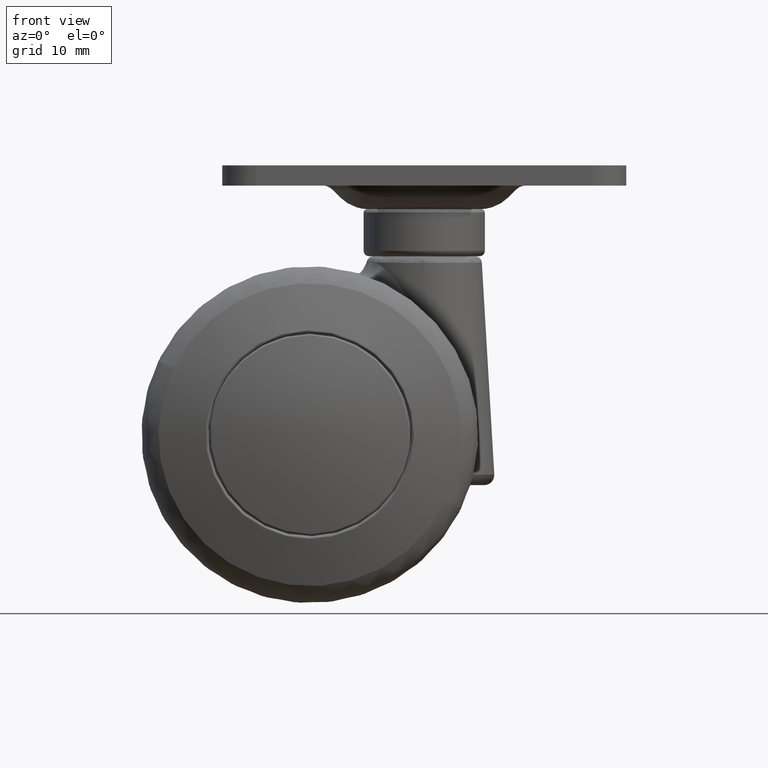
[diagram: clean part render]
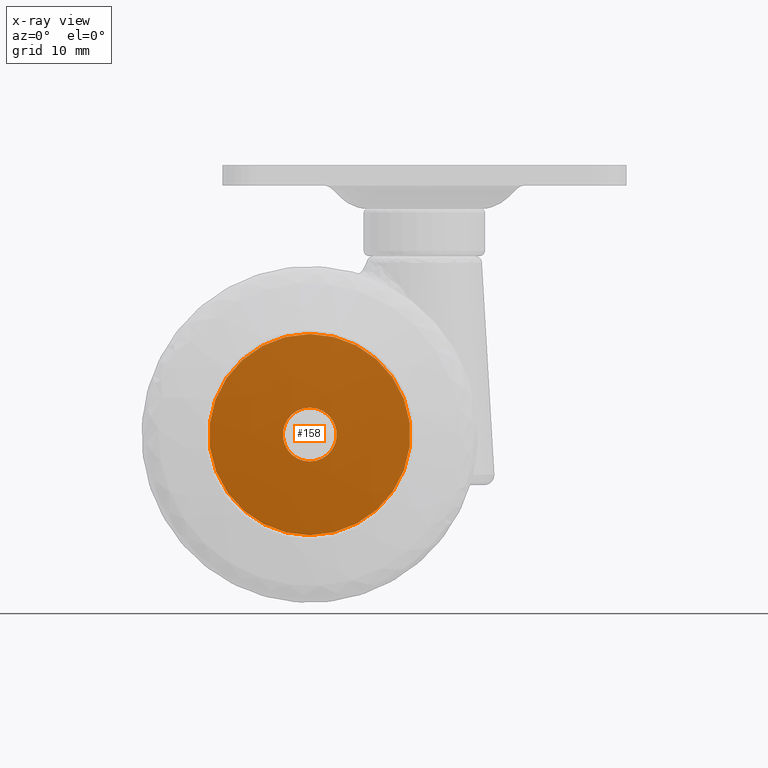
[diagram: x-ray — body ghosted, one internal face saturated and labeled with its STEP entity id]
A machine part, front view, then the same camera in x-ray: the body is ghosted and one INTERNAL B-rep face — a face not visible from any outside direction — is saturated and labeled: STEP entity #158.
In plain terms, the highlighted planar face has unit normal (0, -1, 0).
Its self-contained STEP definition (entity closure, byte-faithful):
#158=ADVANCED_FACE('',(#295,#296),#294,.T.);
#294=PLANE('',#1681);
#295=FACE_OUTER_BOUND('',#1682,.T.);
#296=FACE_BOUND('',#1683,.T.);
#1678=CARTESIAN_POINT('',(-3.42836268246E+01,2.15500000000E+01,2.78420984241E+01));
#1679=DIRECTION('',(0.00000000000E+00,-1.00000000000E+00,0.00000000000E+00));
#1680=DIRECTION('',(0.00000000000E+00,0.00000000000E+00,-1.00000000000E+00));
#1681=AXIS2_PLACEMENT_3D('',#1678,#1679,#1680);
#1682=EDGE_LOOP('',(#6451,#6452,#6453));
#1683=EDGE_LOOP('',(#6454,#6455));
#6451=ORIENTED_EDGE('',*,*,#7069,.T.);
#6452=ORIENTED_EDGE('',*,*,#7070,.T.);
#6453=ORIENTED_EDGE('',*,*,#7071,.T.);
#6454=ORIENTED_EDGE('',*,*,#7072,.F.);
#6455=ORIENTED_EDGE('',*,*,#7073,.F.);
#7069=EDGE_CURVE('',#7378,#7379,#7380,.T.);
#7070=EDGE_CURVE('',#7379,#7386,#7387,.T.);
#7071=EDGE_CURVE('',#7386,#7378,#7393,.T.);
#7072=EDGE_CURVE('',#7399,#7400,#7401,.T.);
#7073=EDGE_CURVE('',#7400,#7399,#7407,.T.);
#7378=VERTEX_POINT('',#9423);
#7379=VERTEX_POINT('',#9424);
#7380=CIRCLE('',#9428,1.49500000000E+01);
#7386=VERTEX_POINT('',#9429);
#7387=CIRCLE('',#9433,1.49500000000E+01);
#7393=CIRCLE('',#9437,1.49500000000E+01);
#7399=VERTEX_POINT('',#9438);
#7400=VERTEX_POINT('',#9439);
#7401=CIRCLE('',#9443,4.00000000000E+00);
#7407=CIRCLE('',#9447,4.00000000000E+00);
#9423=CARTESIAN_POINT('',(-9.70151117690E+00,2.15500000000E+01,-1.13746727814E+01));
#9424=CARTESIAN_POINT('',(2.72137363341E-03,2.15500000000E+01,-1.49499997523E+01));
#9425=CARTESIAN_POINT('',(0.00000000000E+00,2.15500000000E+01,0.00000000000E+00));
#9426=DIRECTION('',(0.00000000000E+00,-1.00000000000E+00,0.00000000000E+00));
#9427=DIRECTION('',(-6.48930513505E-01,-0.00000000000E+00,-7.60847677687E-01));
#9428=AXIS2_PLACEMENT_3D('',#9425,#9426,#9427);
#9429=CARTESIAN_POINT('',(2.64134993242E-11,2.15500000000E+01,1.49500000000E+01));
#9430=CARTESIAN_POINT('',(0.00000000000E+00,2.15500000000E+01,0.00000000000E+00));
#9431=DIRECTION('',(0.00000000000E+00,-1.00000000000E+00,0.00000000000E+00));
#9432=DIRECTION('',(-6.48930513505E-01,-0.00000000000E+00,-7.60847677687E-01));
#9433=AXIS2_PLACEMENT_3D('',#9430,#9431,#9432);
#9434=CARTESIAN_POINT('',(0.00000000000E+00,2.15500000000E+01,0.00000000000E+00));
#9435=DIRECTION('',(0.00000000000E+00,-1.00000000000E+00,0.00000000000E+00));
#9436=DIRECTION('',(-6.48930513505E-01,-0.00000000000E+00,-7.60847677687E-01));
#9437=AXIS2_PLACEMENT_3D('',#9434,#9435,#9436);
#9438=CARTESIAN_POINT('',(4.44089209850E-16,2.15500000000E+01,4.00000000000E+00));
#9439=CARTESIAN_POINT('',(0.00000000000E+00,2.15500000000E+01,-4.00000000000E+00));
#9440=CARTESIAN_POINT('',(0.00000000000E+00,2.15500000000E+01,0.00000000000E+00));
#9441=DIRECTION('',(0.00000000000E+00,-1.00000000000E+00,-0.00000000000E+00));
#9442=DIRECTION('',(-1.22460635382E-16,0.00000000000E+00,-1.00000000000E+00));
#9443=AXIS2_PLACEMENT_3D('',#9440,#9441,#9442);
#9444=CARTESIAN_POINT('',(0.00000000000E+00,2.15500000000E+01,0.00000000000E+00));
#9445=DIRECTION('',(0.00000000000E+00,-1.00000000000E+00,-0.00000000000E+00));
#9446=DIRECTION('',(-1.22460635382E-16,0.00000000000E+00,-1.00000000000E+00));
#9447=AXIS2_PLACEMENT_3D('',#9444,#9445,#9446);